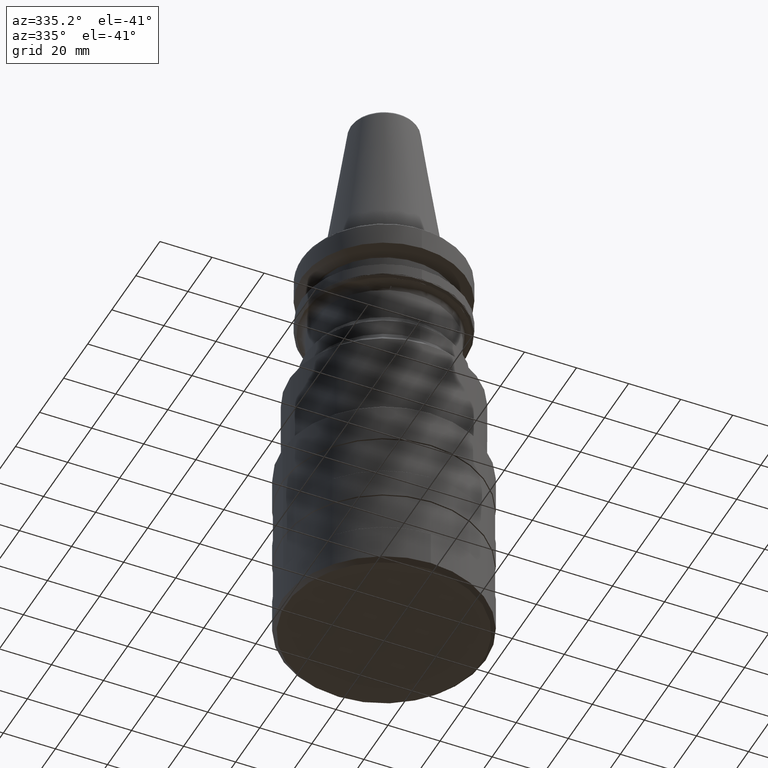
[diagram: clean part render]
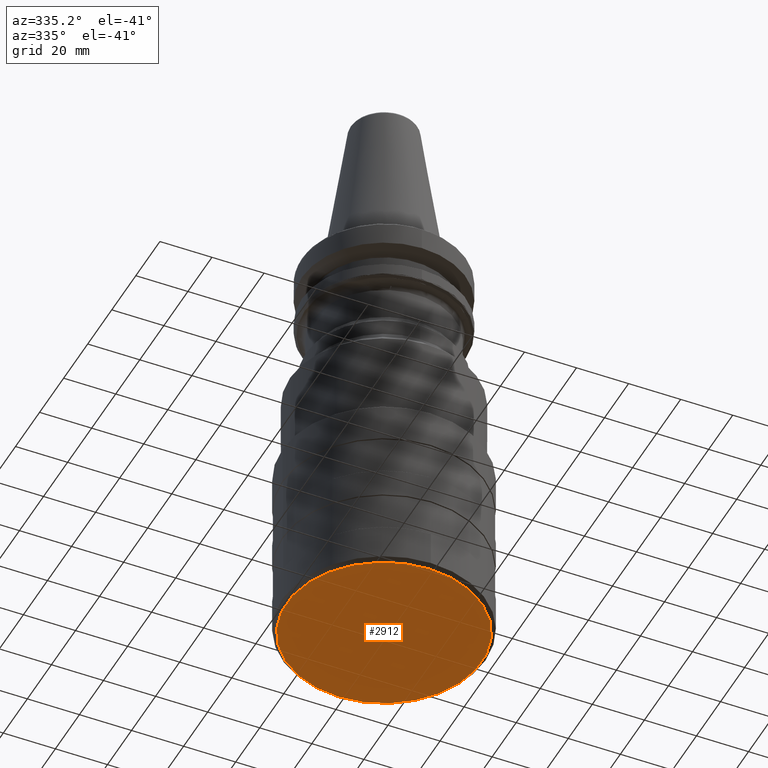
[diagram: same view with one face highlighted and labeled with its STEP entity id]
A machine part, auxiliary view. The second image highlights one B-rep face of the part: STEP entity #2912.
In plain terms, the highlighted planar face has unit normal (0, 0, 1).
Its self-contained STEP definition (entity closure, byte-faithful):
#65 = DIRECTION ( 'NONE',  ( 1.000000000000000000, 0.0000000000000000000, -0.0000000000000000000 ) ) ;
#71 = DIRECTION ( 'NONE',  ( 0.0000000000000000000, 0.0000000000000000000, 1.000000000000000000 ) ) ;
#79 = PLANE ( 'NONE',  #2000 ) ;
#94 = CARTESIAN_POINT ( 'NONE',  ( -37.94999999999999600, -37.94999999999999600, -164.5000000000000000 ) ) ;
#228 = CARTESIAN_POINT ( 'NONE',  ( 4.684274006738622600E-015, 37.49999999999995000, -164.5000000000000900 ) ) ;
#313 = ORIENTED_EDGE ( 'NONE', *, *, #1573, .F. ) ;
#473 = VERTEX_POINT ( 'NONE', #1648 ) ;
#567 = CIRCLE ( 'NONE', #1531, 37.49999999999995000 ) ;
#1059 = ORIENTED_EDGE ( 'NONE', *, *, #1851, .F. ) ;
#1133 = VERTEX_POINT ( 'NONE', #228 ) ;
#1531 = AXIS2_PLACEMENT_3D ( 'NONE', #2630, #2626, #2643 ) ;
#1573 = EDGE_CURVE ( 'NONE', #473, #1133, #2061, .T. ) ;
#1648 = CARTESIAN_POINT ( 'NONE',  ( 0.0000000000000000000, -37.49999999999995000, -164.5000000000000900 ) ) ;
#1851 = EDGE_CURVE ( 'NONE', #1133, #473, #567, .T. ) ;
#2000 = AXIS2_PLACEMENT_3D ( 'NONE', #94, #71, #65 ) ;
#2061 = CIRCLE ( 'NONE', #2142, 37.49999999999995000 ) ;
#2142 = AXIS2_PLACEMENT_3D ( 'NONE', #2755, #2750, #2961 ) ;
#2626 = DIRECTION ( 'NONE',  ( 0.0000000000000000000, -3.558407130208837700E-016, 1.000000000000000000 ) ) ;
#2630 = CARTESIAN_POINT ( 'NONE',  ( 0.0000000000000000000, -2.935685882422268100E-015, -164.5000000000000900 ) ) ;
#2643 = DIRECTION ( 'NONE',  ( 0.0000000000000000000, -1.000000000000000000, 0.0000000000000000000 ) ) ;
#2697 = EDGE_LOOP ( 'NONE', ( #313, #1059 ) ) ;
#2717 = FACE_OUTER_BOUND ( 'NONE', #2697, .T. ) ;
#2750 = DIRECTION ( 'NONE',  ( 0.0000000000000000000, -3.558407130208837700E-016, 1.000000000000000000 ) ) ;
#2755 = CARTESIAN_POINT ( 'NONE',  ( 0.0000000000000000000, -2.935685882422268100E-015, -164.5000000000000900 ) ) ;
#2912 = ADVANCED_FACE ( 'NONE', ( #2717 ), #79, .F. ) ;
#2961 = DIRECTION ( 'NONE',  ( 0.0000000000000000000, -1.000000000000000000, 0.0000000000000000000 ) ) ;